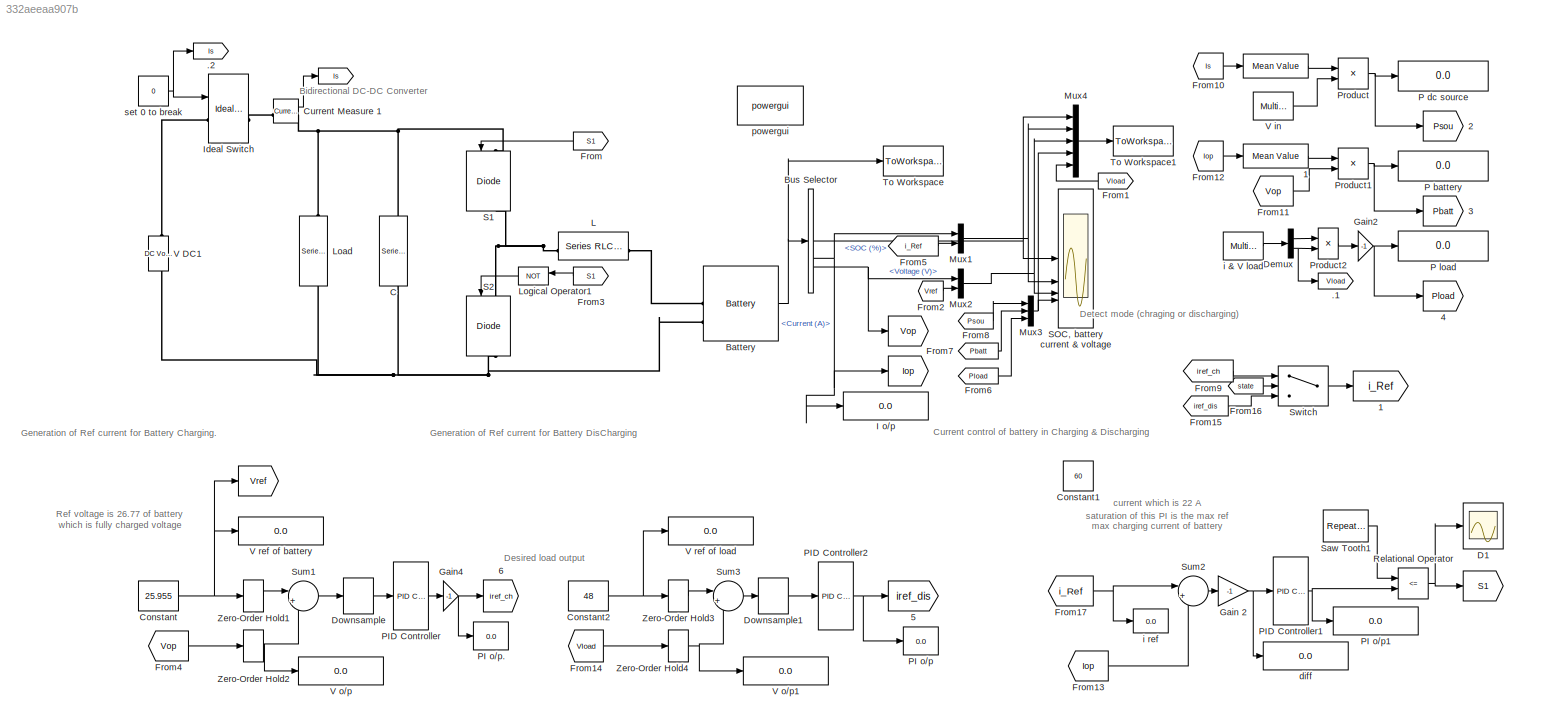
MODEL slx_332aeeaa907b
KIND model
CONFIG AbsTol = auto
CONFIG EnableMultiTasking = off
CONFIG FixedStep = auto
CONFIG MaxStep = auto
CONFIG MinStep = auto
CONFIG RelTol = 1e-3
CONFIG SampleTimeConstraint = Unconstrained
CONFIG SolverName = VariableStepAuto
CONFIG StartTime = 0.0
CONFIG StopTime = 10.0
BLOCK [Reference]      REF=powerlib_extras/Measurements/Mean Value
  SourceBlock = powerlib_extras/Measurements/Mean Value
  SourceType = Mean value
BLOCK [Goto]     
  GotoTag = Vop
BLOCK [Goto]      
  GotoTag = Vref
BLOCK [Goto]          
  GotoTag = Iop
BLOCK [Goto]                                   
  GotoTag = S1
BLOCK [Goto]     1
  GotoTag = i_Ref
BLOCK [Goto]     2
  GotoTag = Psou
BLOCK [Goto]     3
  GotoTag = Pbatt
BLOCK [Goto]     4
  GotoTag = Pload
BLOCK [Goto]     5
  GotoTag = iref_dis
BLOCK [Goto]     6
  GotoTag = iref_ch
BLOCK [Reference]    1  REF=powerlib_extras/Measurements/Mean Value
  SourceBlock = powerlib_extras/Measurements/Mean Value
  SourceType = Mean value
BLOCK [Scope]    D1
  Floating = off
  NumInputPorts = 1
  ScopeSpecificationString = Simulink.scopes.TimeScopeBlockCfg('CurrentConfiguration', extmgr.ConfigurationSet(extmgr.Configuration('Core','General UI',true),extmgr.Configuration('Core','Source UI',true),extmgr.Configuration('Sources','WiredSimulink',true,'DataLoggingVariableName','ScopeData1','DataLoggingSaveFormat','Array','DataLoggingDecimation','1','DataLoggingDecimateData',true),extmgr.Configuration('Visuals','Time Domai...<+1798ch>
BLOCK [Goto] .
  GotoTag = Is
BLOCK [Goto] .1
  GotoTag = Vload
BLOCK [Goto] .2
  GotoTag = Is
BLOCK [Reference] Battery  REF=spsBatteryLib/Battery
  LibrarySourceBlock = electricdrivelib/Extra Sources/Battery
  SourceBlock = spsBatteryLib/Battery
  SourceType = Battery
BLOCK [BusSelector] Bus Selector
  OutputSignals = SOC (%),Current (A),Voltage (V)
BLOCK [Reference] C  REF=spsSeriesRLCBranchLib/Series RLC Branch
  LibrarySourceBlock = sps_lib/Passives/Series RLC Branch
  NameLocation = left
  SourceBlock = spsSeriesRLCBranchLib/Series RLC Branch
  SourceType = Series RLC Branch
BLOCK [Constant] Constant
  Value = 25.955
BLOCK [Constant] Constant1
  Value = 60
BLOCK [Constant] Constant2
  Value = 48
BLOCK [Reference] Current Measure 1  REF=spsCurrentMeasurementLib/Current Measurement
  LibrarySourceBlock = sps_lib/Sensors and Measurements/Current Measurement
  SourceBlock = spsCurrentMeasurementLib/Current Measurement
  SourceType = Current Measurement
BLOCK [Demux] Demux
  Outputs = 2
BLOCK [DownSample] Downsample
  InputProcessing = Inherited (this choice will be removed - see release notes)
  N = Fs/Fsw
  RateOptions = Allow multirate processing
  UserDataPersistent = on
BLOCK [DownSample] Downsample1
  InputProcessing = Inherited (this choice will be removed - see release notes)
  N = Fs/Fsw
  RateOptions = Allow multirate processing
  UserDataPersistent = on
BLOCK [From] From
  GotoTag = S1
  NameLocation = top
BLOCK [From] From1
  GotoTag = Vload
  NameLocation = top
BLOCK [From] From10
  GotoTag = Is
BLOCK [From] From11
  GotoTag = Vop
BLOCK [From] From12
  GotoTag = Iop
BLOCK [From] From13
  GotoTag = Iop
BLOCK [From] From14
  GotoTag = Vload
BLOCK [From] From15
  GotoTag = iref_dis
BLOCK [From] From16
  GotoTag = state
BLOCK [From] From17
  GotoTag = i_Ref
BLOCK [From] From2
  GotoTag = Vref
BLOCK [From] From3
  GotoTag = S1
  NameLocation = top
BLOCK [From] From4
  GotoTag = Vop
BLOCK [From] From5
  GotoTag = i_Ref
BLOCK [From] From6
  GotoTag = Pload
BLOCK [From] From7
  GotoTag = Pbatt
BLOCK [From] From8
  GotoTag = Psou
BLOCK [From] From9
  GotoTag = iref_ch
BLOCK [Gain] Gain 2
  Gain = -1
BLOCK [Gain] Gain2
  Gain = -1
BLOCK [Gain] Gain4
  Gain = -1
BLOCK [Display] I o//p
  Decimation = 1
BLOCK [Reference] Ideal Switch  REF=spsIdealSwitchLib/Ideal Switch
  LibrarySourceBlock = sps_lib/Power Electronics/Ideal Switch
  SourceBlock = spsIdealSwitchLib/Ideal Switch
  SourceType = Ideal Switch
BLOCK [Reference] L  REF=spsSeriesRLCBranchLib/Series RLC Branch
  LibrarySourceBlock = sps_lib/Passives/Series RLC Branch
  SourceBlock = spsSeriesRLCBranchLib/Series RLC Branch
  SourceType = Series RLC Branch
BLOCK [Reference] Load  REF=spsSeriesRLCBranchLib/Series RLC Branch
  LibrarySourceBlock = sps_lib/Passives/Series RLC Branch
  NameLocation = left
  SourceBlock = spsSeriesRLCBranchLib/Series RLC Branch
  SourceType = Series RLC Branch
BLOCK [Logic] Logical Operator1
  AllPortsSameDT = off
  Operator = NOT
  OutDataTypeStr = boolean
BLOCK [Mux] Mux1
  DisplayOption = bar
  Inputs = 2
BLOCK [Mux] Mux2
  DisplayOption = bar
  Inputs = 2
BLOCK [Mux] Mux3
  DisplayOption = bar
  Inputs = 3
BLOCK [Mux] Mux4
  DisplayOption = bar
  Inputs = 5
BLOCK [Display] P battery
  Decimation = 1
BLOCK [Display] P dc source
  Decimation = 1
BLOCK [Display] P load
  Decimation = 1
BLOCK [Display] PI o//p
  Decimation = 1
BLOCK [Display] PI o//p.
  Decimation = 1
BLOCK [Display] PI o//p1
  Decimation = 1
BLOCK [Reference] PID Controller  REF=slpidlib/PID Controller
  SourceBlock = slpidlib/PID Controller
  SourceType = PID 1dof
BLOCK [Reference] PID Controller1  REF=slpidlib/PID Controller
  SourceBlock = slpidlib/PID Controller
  SourceType = PID 1dof
BLOCK [Reference] PID Controller2  REF=slpidlib/PID Controller
  SourceBlock = slpidlib/PID Controller
  SourceType = PID 1dof
BLOCK [Product] Product
BLOCK [Product] Product1
BLOCK [Product] Product2
BLOCK [RelationalOperator] Relational Operator
  InputSameDT = off
  Operator = <=
  OutDataTypeStr = boolean
  RndMeth = Simplest
BLOCK [Reference] S1  REF=spsIGBTDiodeLib/IGBT//Diode
  LibrarySourceBlock = sps_lib/Power Electronics/IGBT//Diode
  NameLocation = left
  SourceBlock = spsIGBTDiodeLib/IGBT//Diode
  SourceType = IGBT/Diode
BLOCK [Reference] S2  REF=spsIGBTDiodeLib/IGBT//Diode
  LibrarySourceBlock = sps_lib/Power Electronics/IGBT//Diode
  NameLocation = left
  SourceBlock = spsIGBTDiodeLib/IGBT//Diode
  SourceType = IGBT/Diode
BLOCK [Scope] SOC, battery current & voltage
  Floating = off
  NumInputPorts = 4
  ScopeSpecificationString = Simulink.scopes.TimeScopeBlockCfg('CurrentConfiguration', extmgr.ConfigurationSet(extmgr.Configuration('Core','General UI',true,'FigureColor',[1 1 1]),extmgr.Configuration('Core','Source UI',true),extmgr.Configuration('Sources','WiredSimulink',true,'SampleTime','1/Fs','DataLoggingSaveFormat','StructureWithTime'),extmgr.Configuration('Visuals','Time Domain',true,'SerializedDisplays',{struct('MinYLi...<+7345ch>
BLOCK [Reference] Saw Tooth1  REF=simulink/Sources/Repeating
Sequence
  SourceBlock = simulink/Sources/Repeating\nSequence
  SourceType = Repeating table
BLOCK [Sum] Sum1
  Inputs = |+-
BLOCK [Sum] Sum2
  Inputs = |+-
BLOCK [Sum] Sum3
  Inputs = |+-
BLOCK [Switch] Switch
  Criteria = u2 > Threshold
  InputSameDT = off
  SaturateOnIntegerOverflow = off
BLOCK [ToWorkspace] To Workspace
  FixptAsFi = on
  MaxDataPoints = inf
  SampleTime = -1
  VariableName = Soc_Ibatt_Vbatt_
BLOCK [ToWorkspace] To Workspace1
  FixptAsFi = on
  MaxDataPoints = inf
  SampleTime = -1
  VariableName = Soc_Ibatt_Vbatt_Power_loadVolt
BLOCK [Reference] V DC1  REF=spsDCVoltageSourceLib/DC Voltage Source
  LibrarySourceBlock = sps_lib/Sources/DC Voltage Source
  NameLocation = right
  SourceBlock = spsDCVoltageSourceLib/DC Voltage Source
  SourceType = DC Voltage Source
BLOCK [Reference] V in  REF=spsMultimeterLib/Multimeter
  LibrarySourceBlock = sps_lib/Sensors and Measurements/Multimeter
  SourceBlock = spsMultimeterLib/Multimeter
  SourceType = Multimeter
BLOCK [Display] V o//p
  Decimation = 1
BLOCK [Display] V o//p1
  Decimation = 1
BLOCK [Display] V ref of battery 
  Decimation = 1
BLOCK [Display] V ref of load
  Decimation = 1
BLOCK [ZeroOrderHold] Zero-Order Hold1
  SampleTime = 1/Fs
BLOCK [ZeroOrderHold] Zero-Order Hold2
  SampleTime = 1/Fs
BLOCK [ZeroOrderHold] Zero-Order Hold3
  SampleTime = 1/Fs
BLOCK [ZeroOrderHold] Zero-Order Hold4
  SampleTime = 1/Fs
BLOCK [Display] diff
  Decimation = 1
BLOCK [Reference] i & V load  REF=spsMultimeterLib/Multimeter
  LibrarySourceBlock = sps_lib/Sensors and Measurements/Multimeter
  SourceBlock = spsMultimeterLib/Multimeter
  SourceType = Multimeter
BLOCK [Display] i ref
  Decimation = 1
BLOCK [Reference] powergui  REF=spspowerguiLib/powergui
  Priority = 1
  SourceBlock = spspowerguiLib/powergui
  SourceType = PSB option menu block
BLOCK [Constant] set 0 to break
  Value = 0
ANNOTATION (root): Desired load output
ANNOTATION (root): Ref voltage is 26.77 of battery which is fully charged voltage
ANNOTATION (root): saturation of this PI is the max ref current which is 22 A max charging current of battery
ANNOTATION (root): Bidirectional DC-DC Converter
ANNOTATION (root): Current control of battery in Charging & Discharging
ANNOTATION (root): Detect mode (chraging or discharging)
ANNOTATION (root): Generation of Ref current for Battery Charging.
ANNOTATION (root): Generation of Ref current for Battery DisCharging
LINE    1:1 -> Product1:1
LINE    :1 -> Product:1
NET Battery:1 -> Bus Selector:1, To Workspace:1
NET Bus Selector:1 -> Mux4:1, SOC, battery current & voltage:1
NET Bus Selector:2 ->          :1, I o//p:1, Mux1:1
NET Bus Selector:3 ->     :1, Mux2:1
NET Constant2:1 -> V ref of load:1, Zero-Order Hold3:1
NET Constant:1 ->      :1, V ref of battery :1, Zero-Order Hold1:1
LINE Current Measure 1:1 -> .:1
LINE Demux:1 -> Product2:1
NET Demux:2 -> .1:1, Product2:2
LINE Downsample1:1 -> PID Controller2:1
LINE Downsample:1 -> PID Controller:1
LINE From10:1 ->    :1
LINE From11:1 -> Product1:2
LINE From12:1 ->    1:1
LINE From13:1 -> Sum2:2
LINE From14:1 -> Zero-Order Hold4:1
LINE From15:1 -> Switch:3
LINE From16:1 -> Switch:2
NET From17:1 -> Sum2:1, i ref:1
LINE From1:1 -> Mux4:5
LINE From2:1 -> Mux2:2
LINE From3:1 -> Logical Operator1:1
LINE From4:1 -> Zero-Order Hold2:1
LINE From5:1 -> Mux1:2
LINE From6:1 -> Mux3:3
LINE From7:1 -> Mux3:2
LINE From8:1 -> Mux3:1
LINE From9:1 -> Switch:1
LINE From:1 -> S1:1
NET Gain 2:1 -> PID Controller1:1, diff:1
NET Gain2:1 ->     4:1, P load:1
NET Gain4:1 ->     6:1, PI o//p.:1
LINE Logical Operator1:1 -> S2:1
NET Mux1:1 -> Mux4:2, SOC, battery current & voltage:2
NET Mux2:1 -> Mux4:3, SOC, battery current & voltage:3
NET Mux3:1 -> Mux4:4, SOC, battery current & voltage:4
LINE Mux4:1 -> To Workspace1:1
NET PID Controller1:1 -> PI o//p1:1, Relational Operator:2
NET PID Controller2:1 ->     5:1, PI o//p:1
LINE PID Controller:1 -> Gain4:1
NET Product1:1 ->     3:1, P battery:1
LINE Product2:1 -> Gain2:1
NET Product:1 ->     2:1, P dc source:1
NET Relational Operator:1 ->                                   :1,    D1:1
LINE Saw Tooth1:1 -> Relational Operator:1
LINE Sum1:1 -> Downsample:1
LINE Sum2:1 -> Gain 2:1
LINE Sum3:1 -> Downsample1:1
LINE Switch:1 ->     1:1
LINE V in:1 -> Product:2
LINE Zero-Order Hold1:1 -> Sum1:1
NET Zero-Order Hold2:1 -> Sum1:2, V o//p:1
LINE Zero-Order Hold3:1 -> Sum3:1
NET Zero-Order Hold4:1 -> Sum3:2, V o//p1:1
LINE i & V load:1 -> Demux:1
NET set 0 to break:1 -> .2:1, Ideal Switch:1
PLINE Battery:LConn1 -- L:RConn1
PNET net1: Battery:LConn2 -- C:RConn1 -- Load:RConn1 -- S2:RConn1 -- V DC1:LConn1
PNET net2: C:LConn1 -- Current Measure 1:RConn1 -- Load:LConn1 -- S1:LConn1
PLINE Current Measure 1:LConn1 -- Ideal Switch:RConn1
PLINE Ideal Switch:LConn1 -- V DC1:RConn1
PNET net3: L:LConn1 -- S1:RConn1 -- S2:LConn1
note: NET lines group one-source signal fan-out (src -> all destinations, sorted); 1:1 wires keep LINE; PNET lines group multi-terminal physical nets as a canonical sorted terminal list (undirected conserving connections); 2-terminal nets keep the pairwise PLINE form
